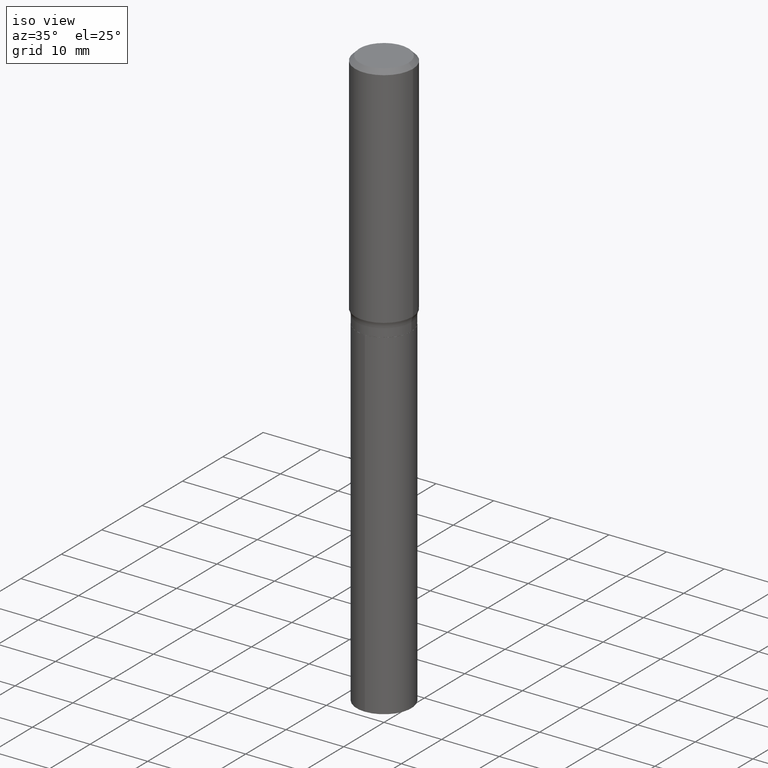
[diagram: clean part render]
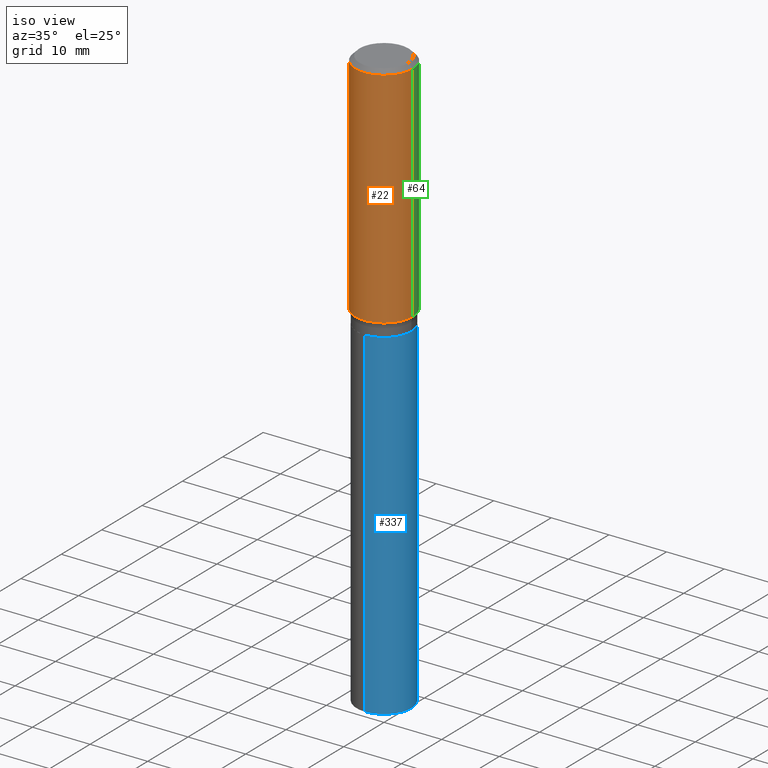
[diagram: same view with three faces highlighted in distinct colors, each labeled with its STEP entity id]
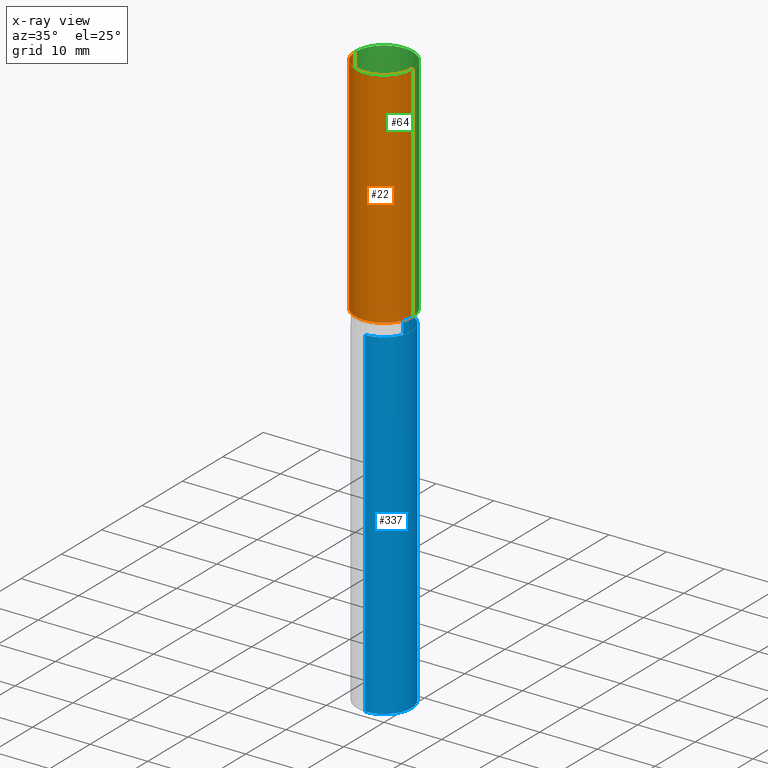
[diagram: x-ray of the same camera — body ghosted, the three highlighted faces saturated]
A machine part, iso view with three faces highlighted in distinct colors.
The next image is the same camera in x-ray (body ghosted, the three faces saturated) — at least one of them is partly hidden behind the body in this view.
Their STEP definitions:

[orange] entity #22 — the highlighted cylindrical surface (edge-blend (fillet) strip) has radius 5 mm, axis along (-0, 0, 1).
#1 = CIRCLE ( 'NONE', #29, 0.1968500000000000527 ) ;
#11 = DIRECTION ( 'NONE',  ( 1.000000000000000000, -6.982962677686269866E-15, 0.000000000000000000 ) ) ;
#22 = ADVANCED_FACE ( 'NONE', ( #282 ), #126, .T. ) ;
#29 = AXIS2_PLACEMENT_3D ( 'NONE', #100, #458, #205 ) ;
#48 = CIRCLE ( 'NONE', #364, 0.1968500000000002470 ) ;
#49 = CARTESIAN_POINT ( 'NONE',  ( 0.1968500000000002470, -6.817669790081734907E-15, -1.558958235412674087 ) ) ;
#68 = CARTESIAN_POINT ( 'NONE',  ( -0.1968500000000001360, 1.398703375343758182E-15, -9.682923725166790684E-30 ) ) ;
#77 = EDGE_CURVE ( 'NONE', #273, #492, #48, .T. ) ;
#83 = CARTESIAN_POINT ( 'NONE',  ( 0.1968500000000001360, -1.374596203102542594E-15, 9.598753983154306463E-30 ) ) ;
#97 = DIRECTION ( 'NONE',  ( -2.445468806185136597E-29, 3.491481338843145583E-15, 1.000000000000000000 ) ) ;
#100 = CARTESIAN_POINT ( 'NONE',  ( 7.220858017463207734E-31, -1.030947152326916363E-16, -0.02952750000000018554 ) ) ;
#107 = CARTESIAN_POINT ( 'NONE',  ( -0.1968500000000000527, -1.374380775762182930E-15, -0.02952750000000018554 ) ) ;
#114 = ORIENTED_EDGE ( 'NONE', *, *, #195, .T. ) ;
#126 = CYLINDRICAL_SURFACE ( 'NONE', #249, 0.1968500000000001360 ) ;
#147 = EDGE_CURVE ( 'NONE', #273, #262, #256, .T. ) ;
#169 = ORIENTED_EDGE ( 'NONE', *, *, #385, .F. ) ;
#180 = CARTESIAN_POINT ( 'NONE',  ( -0.1968500000000002470, -4.044370211635432356E-15, -1.558958235412674087 ) ) ;
#195 = EDGE_CURVE ( 'NONE', #492, #474, #344, .T. ) ;
#199 = ORIENTED_EDGE ( 'NONE', *, *, #77, .T. ) ;
#205 = DIRECTION ( 'NONE',  ( 1.000000000000000000, -6.982962677686266711E-15, 0.000000000000000000 ) ) ;
#228 = EDGE_LOOP ( 'NONE', ( #444, #199, #114, #169 ) ) ;
#233 = CARTESIAN_POINT ( 'NONE',  ( 3.812383734847119747E-29, -5.443073586979190932E-15, -1.558958235412674087 ) ) ;
#237 = DIRECTION ( 'NONE',  ( 1.000000000000000000, -6.982962677686266711E-15, 4.876176775795935793E-29 ) ) ;
#249 = AXIS2_PLACEMENT_3D ( 'NONE', #351, #97, #237 ) ;
#256 = LINE ( 'NONE', #68, #441 ) ;
#258 = DIRECTION ( 'NONE',  ( -2.445468806185136877E-29, 3.491481338843145188E-15, 1.000000000000000000 ) ) ;
#262 = VERTEX_POINT ( 'NONE', #107 ) ;
#273 = VERTEX_POINT ( 'NONE', #180 ) ;
#282 = FACE_OUTER_BOUND ( 'NONE', #228, .T. ) ;
#289 = DIRECTION ( 'NONE',  ( -2.445468806185136877E-29, 3.491481338843145188E-15, 1.000000000000000000 ) ) ;
#321 = DIRECTION ( 'NONE',  ( -2.445468806185136597E-29, 3.491481338843145583E-15, 1.000000000000000000 ) ) ;
#344 = LINE ( 'NONE', #83, #429 ) ;
#351 = CARTESIAN_POINT ( 'NONE',  ( 0.000000000000000000, 0.000000000000000000, 0.000000000000000000 ) ) ;
#357 = CARTESIAN_POINT ( 'NONE',  ( 0.1968500000000000527, -1.477690918335233688E-15, -0.02952750000000018554 ) ) ;
#364 = AXIS2_PLACEMENT_3D ( 'NONE', #233, #321, #11 ) ;
#385 = EDGE_CURVE ( 'NONE', #262, #474, #1, .T. ) ;
#429 = VECTOR ( 'NONE', #258, 39.37007874015748143 ) ;
#441 = VECTOR ( 'NONE', #289, 39.37007874015748143 ) ;
#444 = ORIENTED_EDGE ( 'NONE', *, *, #147, .F. ) ;
#458 = DIRECTION ( 'NONE',  ( -2.445468806185136597E-29, 3.491481338843145583E-15, 1.000000000000000000 ) ) ;
#474 = VERTEX_POINT ( 'NONE', #357 ) ;
#492 = VERTEX_POINT ( 'NONE', #49 ) ;

[blue] entity #337 — the highlighted cylindrical surface (edge-blend (fillet) strip) has radius 4.7498 mm, axis along (-0, 0, 1).
#3 = EDGE_CURVE ( 'NONE', #179, #192, #471, .T. ) ;
#69 = CARTESIAN_POINT ( 'NONE',  ( 1.328714915871427774E-15, 0.1869999999999942542, -1.653400000000000203 ) ) ;
#94 = DIRECTION ( 'NONE',  ( -2.445507172700810819E-29, 3.491426395809013811E-15, 1.000000000000000000 ) ) ;
#95 = CIRCLE ( 'NONE', #157, 0.1869999999999999996 ) ;
#96 = ORIENTED_EDGE ( 'NONE', *, *, #185, .T. ) ;
#106 = CARTESIAN_POINT ( 'NONE',  ( 4.043338124146503856E-29, -5.772815245643255193E-15, -1.653399999999999537 ) ) ;
#112 = EDGE_CURVE ( 'NONE', #381, #435, #95, .T. ) ;
#145 = LINE ( 'NONE', #297, #465 ) ;
#157 = AXIS2_PLACEMENT_3D ( 'NONE', #442, #193, #240 ) ;
#178 = CARTESIAN_POINT ( 'NONE',  ( 4.043338124146503856E-29, -5.772815245643255193E-15, -1.653399999999999537 ) ) ;
#179 = VERTEX_POINT ( 'NONE', #372 ) ;
#181 = DIRECTION ( 'NONE',  ( -2.445507172700810819E-29, 3.491426395809013811E-15, 1.000000000000000000 ) ) ;
#183 = CYLINDRICAL_SURFACE ( 'NONE', #383, 0.1869999999999999996 ) ;
#185 = EDGE_CURVE ( 'NONE', #435, #192, #252, .T. ) ;
#192 = VERTEX_POINT ( 'NONE', #298 ) ;
#193 = DIRECTION ( 'NONE',  ( -2.445507172700810819E-29, 3.491426395809013811E-15, 1.000000000000000000 ) ) ;
#227 = AXIS2_PLACEMENT_3D ( 'NONE', #178, #94, #438 ) ;
#230 = ORIENTED_EDGE ( 'NONE', *, *, #376, .F. ) ;
#231 = CARTESIAN_POINT ( 'NONE',  ( 1.328714915871484769E-15, 0.1869999999999861218, -3.979447095768826603 ) ) ;
#240 = DIRECTION ( 'NONE',  ( -6.982962677686266711E-15, -1.000000000000000000, 2.921762560068730595E-15 ) ) ;
#246 = EDGE_LOOP ( 'NONE', ( #343, #96, #309, #230 ) ) ;
#252 = LINE ( 'NONE', #69, #419 ) ;
#255 = FACE_OUTER_BOUND ( 'NONE', #246, .T. ) ;
#297 = CARTESIAN_POINT ( 'NONE',  ( -1.305814020727291375E-15, -0.1870000000000057727, -1.653399999999999093 ) ) ;
#298 = CARTESIAN_POINT ( 'NONE',  ( 1.328714915871484966E-15, 0.1869999999999942542, -1.653400000000000203 ) ) ;
#309 = ORIENTED_EDGE ( 'NONE', *, *, #3, .F. ) ;
#337 = ADVANCED_FACE ( 'NONE', ( #255 ), #183, .T. ) ;
#343 = ORIENTED_EDGE ( 'NONE', *, *, #112, .T. ) ;
#372 = CARTESIAN_POINT ( 'NONE',  ( -1.305814020727291375E-15, -0.1870000000000057727, -1.653399999999999093 ) ) ;
#376 = EDGE_CURVE ( 'NONE', #381, #179, #145, .T. ) ;
#381 = VERTEX_POINT ( 'NONE', #447 ) ;
#383 = AXIS2_PLACEMENT_3D ( 'NONE', #106, #181, #486 ) ;
#407 = DIRECTION ( 'NONE',  ( -2.445507172700810819E-29, 3.491426395809013417E-15, 1.000000000000000000 ) ) ;
#419 = VECTOR ( 'NONE', #407, 39.37007874015748143 ) ;
#435 = VERTEX_POINT ( 'NONE', #231 ) ;
#438 = DIRECTION ( 'NONE',  ( -6.982962677686266711E-15, -1.000000000000000000, 2.921762560068730595E-15 ) ) ;
#442 = CARTESIAN_POINT ( 'NONE',  ( 9.731702980889057427E-29, -1.389403747370543282E-14, -3.979447095768825715 ) ) ;
#447 = CARTESIAN_POINT ( 'NONE',  ( -1.305814020727234577E-15, -0.1870000000000139051, -3.979447095768825271 ) ) ;
#456 = DIRECTION ( 'NONE',  ( -2.445507172700810819E-29, 3.491426395809013417E-15, 1.000000000000000000 ) ) ;
#465 = VECTOR ( 'NONE', #456, 39.37007874015748143 ) ;
#471 = CIRCLE ( 'NONE', #227, 0.1869999999999999996 ) ;
#486 = DIRECTION ( 'NONE',  ( -6.982962677686266711E-15, -1.000000000000000000, 2.921762560068730595E-15 ) ) ;

[green] entity #64 — the highlighted cylindrical surface (edge-blend (fillet) strip) has radius 5 mm, axis along (-0, 0, 1).
#5 = CARTESIAN_POINT ( 'NONE',  ( 0.000000000000000000, 0.000000000000000000, 0.000000000000000000 ) ) ;
#47 = DIRECTION ( 'NONE',  ( 1.000000000000000000, -6.982962677686266711E-15, 4.876176775795935793E-29 ) ) ;
#49 = CARTESIAN_POINT ( 'NONE',  ( 0.1968500000000002470, -6.817669790081734907E-15, -1.558958235412674087 ) ) ;
#64 = ADVANCED_FACE ( 'NONE', ( #318 ), #128, .T. ) ;
#68 = CARTESIAN_POINT ( 'NONE',  ( -0.1968500000000001360, 1.398703375343758182E-15, -9.682923725166790684E-30 ) ) ;
#83 = CARTESIAN_POINT ( 'NONE',  ( 0.1968500000000001360, -1.374596203102542594E-15, 9.598753983154306463E-30 ) ) ;
#90 = CARTESIAN_POINT ( 'NONE',  ( 3.812383734847119747E-29, -5.443073586979190932E-15, -1.558958235412674087 ) ) ;
#107 = CARTESIAN_POINT ( 'NONE',  ( -0.1968500000000000527, -1.374380775762182930E-15, -0.02952750000000018554 ) ) ;
#128 = CYLINDRICAL_SURFACE ( 'NONE', #164, 0.1968500000000001360 ) ;
#142 = AXIS2_PLACEMENT_3D ( 'NONE', #90, #475, #472 ) ;
#147 = EDGE_CURVE ( 'NONE', #273, #262, #256, .T. ) ;
#151 = CIRCLE ( 'NONE', #353, 0.1968500000000000527 ) ;
#164 = AXIS2_PLACEMENT_3D ( 'NONE', #5, #362, #47 ) ;
#180 = CARTESIAN_POINT ( 'NONE',  ( -0.1968500000000002470, -4.044370211635432356E-15, -1.558958235412674087 ) ) ;
#195 = EDGE_CURVE ( 'NONE', #492, #474, #344, .T. ) ;
#256 = LINE ( 'NONE', #68, #441 ) ;
#258 = DIRECTION ( 'NONE',  ( -2.445468806185136877E-29, 3.491481338843145188E-15, 1.000000000000000000 ) ) ;
#262 = VERTEX_POINT ( 'NONE', #107 ) ;
#268 = EDGE_CURVE ( 'NONE', #474, #262, #151, .T. ) ;
#273 = VERTEX_POINT ( 'NONE', #180 ) ;
#289 = DIRECTION ( 'NONE',  ( -2.445468806185136877E-29, 3.491481338843145188E-15, 1.000000000000000000 ) ) ;
#292 = CARTESIAN_POINT ( 'NONE',  ( 7.220858017463207734E-31, -1.030947152326916363E-16, -0.02952750000000018554 ) ) ;
#318 = FACE_OUTER_BOUND ( 'NONE', #413, .T. ) ;
#327 = ORIENTED_EDGE ( 'NONE', *, *, #268, .F. ) ;
#344 = LINE ( 'NONE', #83, #429 ) ;
#353 = AXIS2_PLACEMENT_3D ( 'NONE', #292, #373, #408 ) ;
#357 = CARTESIAN_POINT ( 'NONE',  ( 0.1968500000000000527, -1.477690918335233688E-15, -0.02952750000000018554 ) ) ;
#359 = ORIENTED_EDGE ( 'NONE', *, *, #195, .F. ) ;
#362 = DIRECTION ( 'NONE',  ( -2.445468806185136597E-29, 3.491481338843145583E-15, 1.000000000000000000 ) ) ;
#373 = DIRECTION ( 'NONE',  ( -2.445468806185136597E-29, 3.491481338843145583E-15, 1.000000000000000000 ) ) ;
#405 = EDGE_CURVE ( 'NONE', #492, #273, #481, .T. ) ;
#408 = DIRECTION ( 'NONE',  ( 1.000000000000000000, -6.982962677686266711E-15, 0.000000000000000000 ) ) ;
#413 = EDGE_LOOP ( 'NONE', ( #464, #428, #327, #359 ) ) ;
#428 = ORIENTED_EDGE ( 'NONE', *, *, #147, .T. ) ;
#429 = VECTOR ( 'NONE', #258, 39.37007874015748143 ) ;
#441 = VECTOR ( 'NONE', #289, 39.37007874015748143 ) ;
#464 = ORIENTED_EDGE ( 'NONE', *, *, #405, .T. ) ;
#472 = DIRECTION ( 'NONE',  ( 1.000000000000000000, -6.982962677686269866E-15, 0.000000000000000000 ) ) ;
#474 = VERTEX_POINT ( 'NONE', #357 ) ;
#475 = DIRECTION ( 'NONE',  ( -2.445468806185136597E-29, 3.491481338843145583E-15, 1.000000000000000000 ) ) ;
#481 = CIRCLE ( 'NONE', #142, 0.1968500000000002470 ) ;
#492 = VERTEX_POINT ( 'NONE', #49 ) ;